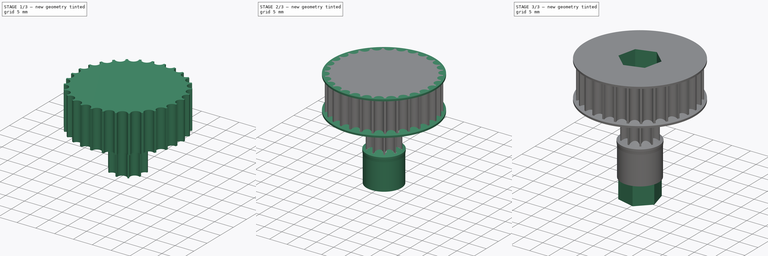
[diagram: build sequence overview — one tinted view per stage of 3, left to right]
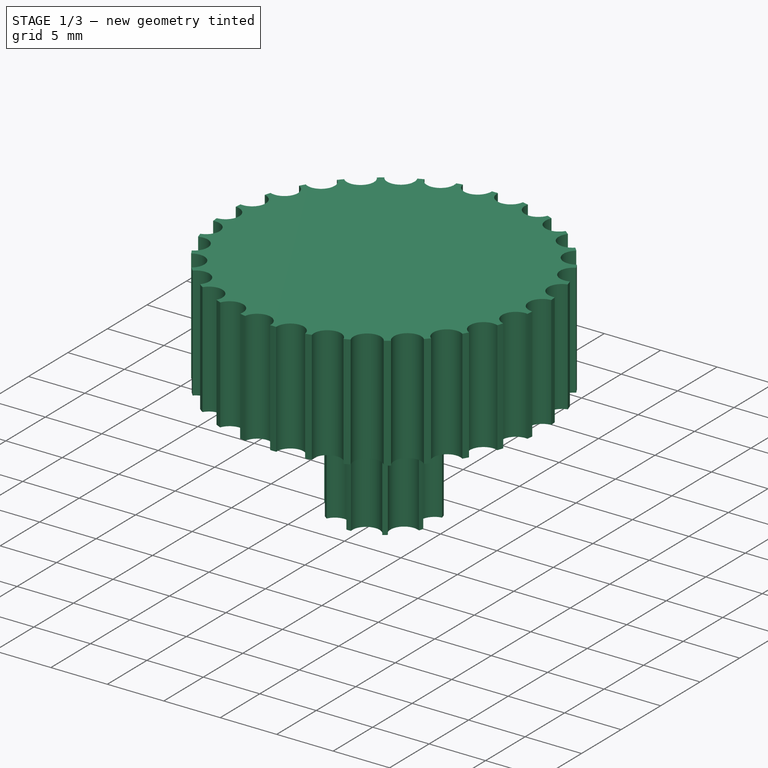
[diagram: stage 1 of 3 — iso view after this stage's code; geometry added in this stage tinted green]
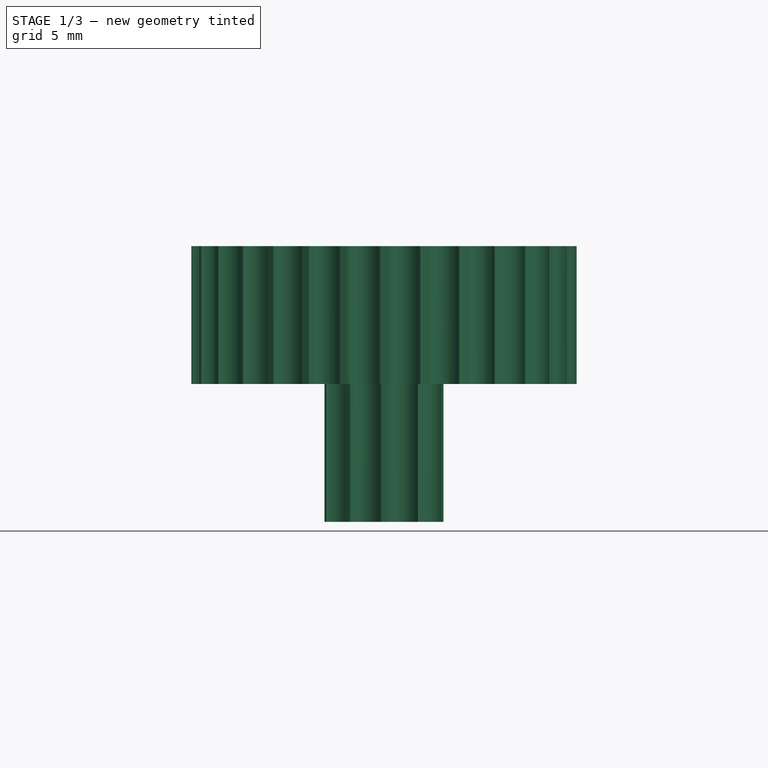
[diagram: stage 1 of 3 — front view after this stage's code; geometry added in this stage tinted green]
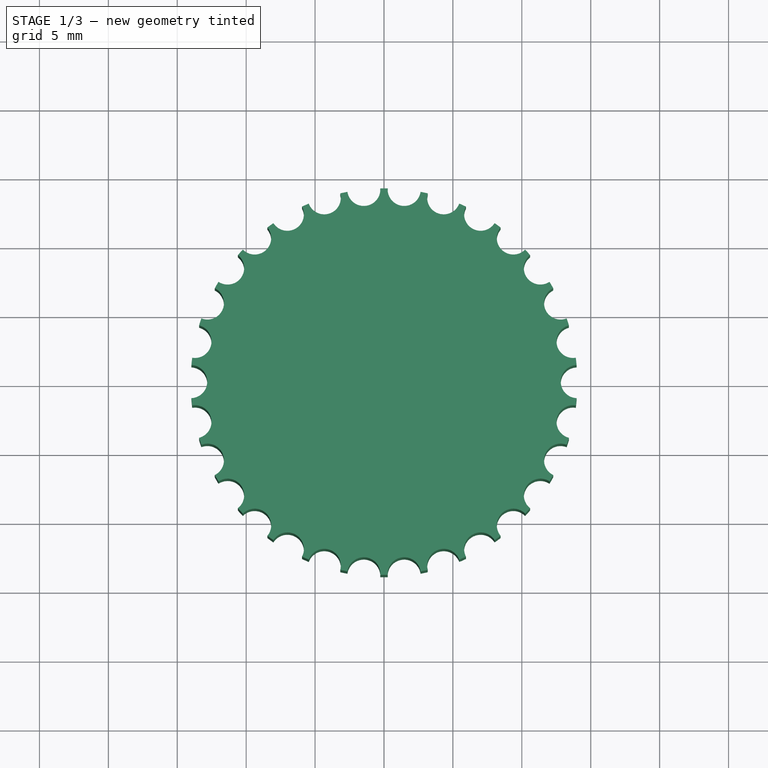
[diagram: stage 1 of 3 — top view after this stage's code; geometry added in this stage tinted green]
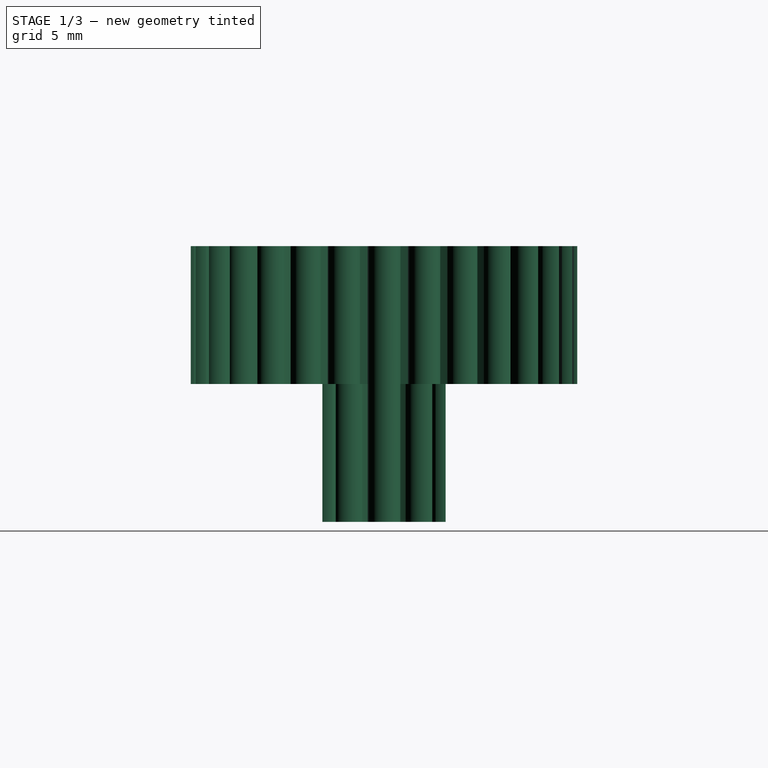
[diagram: stage 1 of 3 — right view after this stage's code; geometry added in this stage tinted green]
FCSTD DOCUMENT  (FreeCAD 0.20R29177 (Git))
Label: biggerWheel
License: All rights reserved
LicenseURL: http://en.wikipedia.org/wiki/All_rights_reserved
objects: Sketcher::SketchObject×5, PartDesign::Pad×3, Spreadsheet::Sheet×1, PartDesign::Revolution×1, PartDesign::Pocket×1, PartDesign::Body×1
note: 16 computed .brp shape members not serialized (recipe doc carries the construction recipe); baked Part::Feature solids carry a one-line shape summary decoded from their .brp

FEATURE [Sketcher::SketchObject] Sketch  label="Sketch30"
  FullyConstrained = false
  MapMode = 5
  Support = -> [XY_Plane]
  sketch-geometry (60):
    g0: ArcOfCircle CenterX=0 CenterY=0 CenterZ=0 NormalX=0 NormalY=0 NormalZ=1 AngleXU=0 Radius=14.0239 StartAngle=6.15934 EndAngle=6.19759
    g1: ArcOfCircle CenterX=14.0239 CenterY=0 CenterZ=0 NormalX=0 NormalY=0 NormalZ=1 AngleXU=0 Radius=1.2 StartAngle=1.61359 EndAngle=4.66959
    g2: ArcOfCircle CenterX=13.7175 CenterY=2.91574 CenterZ=0 NormalX=0 NormalY=0 NormalZ=1 AngleXU=0 Radius=1.2 StartAngle=1.82303 EndAngle=4.87903
    g3: ArcOfCircle CenterX=12.8115 CenterY=5.70405 CenterZ=0 NormalX=0 NormalY=0 NormalZ=1 AngleXU=0 Radius=1.2 StartAngle=2.03247 EndAngle=5.08847
    g4: ArcOfCircle CenterX=11.3456 CenterY=8.24307 CenterZ=0 NormalX=0 NormalY=0 NormalZ=1 AngleXU=0 Radius=1.2 StartAngle=2.24191 EndAngle=5.29791
    g5: ArcOfCircle CenterX=9.38385 CenterY=10.4218 CenterZ=0 NormalX=0 NormalY=0 NormalZ=1 AngleXU=0 Radius=1.2 StartAngle=2.45135 EndAngle=5.50735
    g6: ArcOfCircle CenterX=7.01197 CenterY=12.1451 CenterZ=0 NormalX=0 NormalY=0 NormalZ=1 AngleXU=0 Radius=1.2 StartAngle=2.66079 EndAngle=5.71679
    g7: ArcOfCircle CenterX=4.33364 CenterY=13.3376 CenterZ=0 NormalX=0 NormalY=0 NormalZ=1 AngleXU=0 Radius=1.2 StartAngle=2.87023 EndAngle=5.92623
    g8: ArcOfCircle CenterX=1.4659 CenterY=13.9471 CenterZ=0 NormalX=0 NormalY=0 NormalZ=1 AngleXU=0 Radius=1.2 StartAngle=3.07967 EndAngle=6.13567
    g9: ArcOfCircle CenterX=-1.4659 CenterY=13.9471 CenterZ=0 NormalX=0 NormalY=0 NormalZ=1 AngleXU=0 Radius=1.2 StartAngle=3.28911 EndAngle=6.34511
    g10: ArcOfCircle CenterX=-4.33364 CenterY=13.3376 CenterZ=0 NormalX=0 NormalY=0 NormalZ=1 AngleXU=0 Radius=1.2 StartAngle=3.49855 EndAngle=6.55455
    g11: ArcOfCircle CenterX=-7.01197 CenterY=12.1451 CenterZ=0 NormalX=0 NormalY=0 NormalZ=1 AngleXU=0 Radius=1.2 StartAngle=3.70799 EndAngle=6.76399
    g12: ArcOfCircle CenterX=-9.38385 CenterY=10.4218 CenterZ=0 NormalX=0 NormalY=0 NormalZ=1 AngleXU=0 Radius=1.2 StartAngle=3.91743 EndAngle=6.97343
    g13: ArcOfCircle CenterX=-11.3456 CenterY=8.24307 CenterZ=0 NormalX=0 NormalY=0 NormalZ=1 AngleXU=0 Radius=1.2 StartAngle=4.12687 EndAngle=7.18287
    g14: ArcOfCircle CenterX=-12.8115 CenterY=5.70405 CenterZ=0 NormalX=0 NormalY=0 NormalZ=1 AngleXU=0 Radius=1.2 StartAngle=4.33631 EndAngle=7.39231
    g15: ArcOfCircle CenterX=-13.7175 CenterY=2.91574 CenterZ=0 NormalX=0 NormalY=0 NormalZ=1 AngleXU=0 Radius=1.2 StartAngle=4.54575 EndAngle=7.60175
    g16: ArcOfCircle CenterX=-14.0239 CenterY=1.7e-15 CenterZ=0 NormalX=0 NormalY=0 NormalZ=1 AngleXU=0 Radius=1.2 StartAngle=4.75519 EndAngle=7.81118
    g17: ArcOfCircle CenterX=-13.7175 CenterY=-2.91574 CenterZ=0 NormalX=0 NormalY=0 NormalZ=1 AngleXU=0 Radius=1.2 StartAngle=4.96463 EndAngle=8.02062
    g18: ArcOfCircle CenterX=-12.8115 CenterY=-5.70405 CenterZ=0 NormalX=0 NormalY=0 NormalZ=1 AngleXU=0 Radius=1.2 StartAngle=5.17407 EndAngle=8.23006
    g19: ArcOfCircle CenterX=-11.3456 CenterY=-8.24307 CenterZ=0 NormalX=0 NormalY=0 NormalZ=1 AngleXU=0 Radius=1.2 StartAngle=5.3835 EndAngle=8.4395
    g20: ArcOfCircle CenterX=-9.38385 CenterY=-10.4218 CenterZ=0 NormalX=0 NormalY=0 NormalZ=1 AngleXU=0 Radius=1.2 StartAngle=5.59294 EndAngle=8.64894
    g21: ArcOfCircle CenterX=-7.01197 CenterY=-12.1451 CenterZ=0 NormalX=0 NormalY=0 NormalZ=1 AngleXU=0 Radius=1.2 StartAngle=5.80238 EndAngle=8.85838
    g22: ArcOfCircle CenterX=-4.33364 CenterY=-13.3376 CenterZ=0 NormalX=0 NormalY=0 NormalZ=1 AngleXU=0 Radius=1.2 StartAngle=6.01182 EndAngle=9.06782
    g23: ArcOfCircle CenterX=-1.4659 CenterY=-13.9471 CenterZ=0 NormalX=0 NormalY=0 NormalZ=1 AngleXU=0 Radius=1.2 StartAngle=6.22126 EndAngle=9.27726
    g24: ArcOfCircle CenterX=1.4659 CenterY=-13.9471 CenterZ=0 NormalX=0 NormalY=0 NormalZ=1 AngleXU=0 Radius=1.2 StartAngle=0.147517 EndAngle=3.20352
    g25: ArcOfCircle CenterX=4.33364 CenterY=-13.3376 CenterZ=0 NormalX=0 NormalY=0 NormalZ=1 AngleXU=0 Radius=1.2 StartAngle=0.356956 EndAngle=3.41295
    g26: ArcOfCircle CenterX=7.01197 CenterY=-12.1451 CenterZ=0 NormalX=0 NormalY=0 NormalZ=1 AngleXU=0 Radius=1.2 StartAngle=0.566396 EndAngle=3.62239
    g27: ArcOfCircle CenterX=9.38385 CenterY=-10.4218 CenterZ=0 NormalX=0 NormalY=0 NormalZ=1 AngleXU=0 Radius=1.2 StartAngle=0.775835 EndAngle=3.83183
    g28: ArcOfCircle CenterX=11.3456 CenterY=-8.24307 CenterZ=0 NormalX=0 NormalY=0 NormalZ=1 AngleXU=0 Radius=1.2 StartAngle=0.985275 EndAngle=4.04127
    g29: ArcOfCircle CenterX=12.8115 CenterY=-5.70405 CenterZ=0 NormalX=0 NormalY=0 NormalZ=1 AngleXU=0 Radius=1.2 StartAngle=1.19471 EndAngle=4.25071
    g30: ArcOfCircle CenterX=13.7175 CenterY=-2.91574 CenterZ=0 NormalX=0 NormalY=0 NormalZ=1 AngleXU=0 Radius=1.2 StartAngle=1.40415 EndAngle=4.46015
    g31: ArcOfCircle CenterX=0 CenterY=0 CenterZ=0 NormalX=0 NormalY=0 NormalZ=1 AngleXU=0 Radius=14.0239 StartAngle=5.9499 EndAngle=5.98815
    g32: ArcOfCircle CenterX=0 CenterY=0 CenterZ=0 NormalX=0 NormalY=0 NormalZ=1 AngleXU=0 Radius=14.0239 StartAngle=5.74046 EndAngle=5.77871
    g33: ArcOfCircle CenterX=0 CenterY=0 CenterZ=0 NormalX=0 NormalY=0 NormalZ=1 AngleXU=0 Radius=14.0239 StartAngle=5.53102 EndAngle=5.56927
    g34: ArcOfCircle CenterX=0 CenterY=0 CenterZ=0 NormalX=0 NormalY=0 NormalZ=1 AngleXU=0 Radius=14.0239 StartAngle=5.32158 EndAngle=5.35983
    g35: ArcOfCircle CenterX=0 CenterY=0 CenterZ=0 NormalX=0 NormalY=0 NormalZ=1 AngleXU=0 Radius=14.0239 StartAngle=5.11214 EndAngle=5.15039
    g36: ArcOfCircle CenterX=0 CenterY=0 CenterZ=0 NormalX=0 NormalY=0 NormalZ=1 AngleXU=0 Radius=14.0239 StartAngle=4.9027 EndAngle=4.94095
    g37: ArcOfCircle CenterX=0 CenterY=0 CenterZ=0 NormalX=0 NormalY=0 NormalZ=1 AngleXU=0 Radius=14.0239 StartAngle=4.69326 EndAngle=4.73151
    g38: ArcOfCircle CenterX=0 CenterY=0 CenterZ=0 NormalX=0 NormalY=0 NormalZ=1 AngleXU=0 Radius=14.0239 StartAngle=4.48382 EndAngle=4.52208
    g39: ArcOfCircle CenterX=0 CenterY=0 CenterZ=0 NormalX=0 NormalY=0 NormalZ=1 AngleXU=0 Radius=14.0239 StartAngle=4.27438 EndAngle=4.31264
    g40: ArcOfCircle CenterX=0 CenterY=0 CenterZ=0 NormalX=0 NormalY=0 NormalZ=1 AngleXU=0 Radius=14.0239 StartAngle=4.06494 EndAngle=4.1032
    g41: ArcOfCircle CenterX=0 CenterY=0 CenterZ=0 NormalX=0 NormalY=0 NormalZ=1 AngleXU=0 Radius=14.0239 StartAngle=3.85551 EndAngle=3.89376
    g42: ArcOfCircle CenterX=0 CenterY=0 CenterZ=0 NormalX=0 NormalY=0 NormalZ=1 AngleXU=0 Radius=14.0239 StartAngle=3.64607 EndAngle=3.68432
    g43: ArcOfCircle CenterX=0 CenterY=0 CenterZ=0 NormalX=0 NormalY=0 NormalZ=1 AngleXU=0 Radius=14.0239 StartAngle=3.43663 EndAngle=3.47488
    g44: ArcOfCircle CenterX=0 CenterY=0 CenterZ=0 NormalX=0 NormalY=0 NormalZ=1 AngleXU=0 Radius=14.0239 StartAngle=3.22719 EndAngle=3.26544
    g45: ArcOfCircle CenterX=0 CenterY=0 CenterZ=0 NormalX=0 NormalY=0 NormalZ=1 AngleXU=0 Radius=14.0239 StartAngle=3.01775 EndAngle=3.056
    g46: ArcOfCircle CenterX=0 CenterY=0 CenterZ=0 NormalX=0 NormalY=0 NormalZ=1 AngleXU=0 Radius=14.0239 StartAngle=2.80831 EndAngle=2.84656
    g47: ArcOfCircle CenterX=0 CenterY=0 CenterZ=0 NormalX=0 NormalY=0 NormalZ=1 AngleXU=0 Radius=14.0239 StartAngle=2.59887 EndAngle=2.63712
    g48: ArcOfCircle CenterX=0 CenterY=0 CenterZ=0 NormalX=0 NormalY=0 NormalZ=1 AngleXU=0 Radius=14.0239 StartAngle=2.38943 EndAngle=2.42768
    g49: ArcOfCircle CenterX=0 CenterY=0 CenterZ=0 NormalX=0 NormalY=0 NormalZ=1 AngleXU=0 Radius=14.0239 StartAngle=2.17999 EndAngle=2.21824
    g50: ArcOfCircle CenterX=0 CenterY=0 CenterZ=0 NormalX=0 NormalY=0 NormalZ=1 AngleXU=0 Radius=14.0239 StartAngle=1.97055 EndAngle=2.0088
    g51: ArcOfCircle CenterX=0 CenterY=0 CenterZ=0 NormalX=0 NormalY=0 NormalZ=1 AngleXU=0 Radius=14.0239 StartAngle=1.76111 EndAngle=1.79936
    g52: ArcOfCircle CenterX=0 CenterY=0 CenterZ=0 NormalX=0 NormalY=0 NormalZ=1 AngleXU=0 Radius=14.0239 StartAngle=1.55167 EndAngle=1.58992
    g53: ArcOfCircle CenterX=0 CenterY=0 CenterZ=0 NormalX=0 NormalY=0 NormalZ=1 AngleXU=0 Radius=14.0239 StartAngle=1.34223 EndAngle=1.38048
    g54: ArcOfCircle CenterX=0 CenterY=0 CenterZ=0 NormalX=0 NormalY=0 NormalZ=1 AngleXU=0 Radius=14.0239 StartAngle=1.13279 EndAngle=1.17104
    g55: ArcOfCircle CenterX=0 CenterY=0 CenterZ=0 NormalX=0 NormalY=0 NormalZ=1 AngleXU=0 Radius=14.0239 StartAngle=0.923352 EndAngle=0.961603
    g56: ArcOfCircle CenterX=0 CenterY=0 CenterZ=0 NormalX=0 NormalY=0 NormalZ=1 AngleXU=0 Radius=14.0239 StartAngle=0.713913 EndAngle=0.752164
    g57: ArcOfCircle CenterX=0 CenterY=0 CenterZ=0 NormalX=0 NormalY=0 NormalZ=1 AngleXU=0 Radius=14.0239 StartAngle=0.504473 EndAngle=0.542724
    g58: ArcOfCircle CenterX=0 CenterY=0 CenterZ=0 NormalX=0 NormalY=0 NormalZ=1 AngleXU=0 Radius=14.0239 StartAngle=0.295034 EndAngle=0.333285
    g59: ArcOfCircle CenterX=0 CenterY=0 CenterZ=0 NormalX=0 NormalY=0 NormalZ=1 AngleXU=0 Radius=14.0239 StartAngle=0.0855941 EndAngle=0.123845
  constraints (119):
    c: Coincident(g0,g-1)
    c: Coincident(g31,g30)
    c: Coincident(g0,g30)
    c: Equal(g0,g31)
    c: Coincident(g32,g29)
    c: Coincident(g31,g29)
    c: Coincident(g0,g31)
    c: Equal(g0,g32)
    c: Coincident(g33,g28)
    c: Coincident(g32,g28)
    c: Coincident(g0,g32)
    c: Equal(g0,g33)
    c: Coincident(g34,g27)
    c: Coincident(g33,g27)
    c: Coincident(g0,g33)
    c: Equal(g0,g34)
    c: Coincident(g35,g26)
    c: Coincident(g34,g26)
    c: Coincident(g0,g34)
    c: Equal(g0,g35)
    c: Coincident(g36,g25)
    c: Coincident(g35,g25)
    c: Coincident(g0,g35)
    c: Equal(g0,g36)
    c: Coincident(g37,g24)
    c: Coincident(g36,g24)
    c: Coincident(g0,g36)
    c: Equal(g0,g37)
    c: Coincident(g38,g23)
    c: Coincident(g37,g23)
    c: Coincident(g0,g37)
    c: Equal(g0,g38)
    c: Coincident(g39,g22)
    c: Coincident(g38,g22)
    c: Coincident(g0,g38)
    c: Equal(g0,g39)
    c: Coincident(g40,g21)
    c: Coincident(g39,g21)
    c: Coincident(g0,g39)
    c: Equal(g0,g40)
    c: Coincident(g41,g20)
    c: Coincident(g40,g20)
    c: Coincident(g0,g40)
    c: Equal(g0,g41)
    c: Coincident(g42,g19)
    c: Coincident(g41,g19)
    c: Coincident(g0,g41)
    c: Equal(g0,g42)
    c: Coincident(g43,g18)
    c: Coincident(g42,g18)
    c: Coincident(g0,g42)
    c: Equal(g0,g43)
    c: Coincident(g44,g17)
    c: Coincident(g43,g17)
    c: Coincident(g0,g43)
    c: Equal(g0,g44)
    c: Coincident(g45,g16)
    c: Coincident(g44,g16)
    c: Coincident(g0,g44)
    c: Equal(g0,g45)
    c: Coincident(g46,g15)
    c: Coincident(g45,g15)
    c: Coincident(g0,g45)
    c: Equal(g0,g46)
    c: Coincident(g47,g14)
    c: Coincident(g46,g14)
    c: Coincident(g0,g46)
    c: Equal(g0,g47)
    c: Coincident(g48,g13)
    c: Coincident(g47,g13)
    c: Coincident(g0,g47)
    c: Equal(g0,g48)
    c: Coincident(g49,g12)
    c: Coincident(g48,g12)
    c: Coincident(g0,g48)
    c: Equal(g0,g49)
    c: Coincident(g50,g11)
    c: Coincident(g49,g11)
    c: Coincident(g0,g49)
    c: Equal(g0,g50)
    c: Coincident(g51,g10)
    c: Coincident(g50,g10)
    c: Coincident(g0,g50)
    c: Equal(g0,g51)
    c: Coincident(g52,g9)
    c: Coincident(g51,g9)
    c: Coincident(g0,g51)
    c: Equal(g0,g52)
    c: Coincident(g53,g8)
    c: Coincident(g52,g8)
    c: Coincident(g0,g52)
    c: Equal(g0,g53)
    c: Coincident(g54,g7)
    c: Coincident(g53,g7)
    c: Coincident(g0,g53)
    c: Equal(g0,g54)
    c: Coincident(g55,g6)
    c: Coincident(g54,g6)
    c: Coincident(g0,g54)
    c: Equal(g0,g55)
    c: Coincident(g56,g5)
    c: Coincident(g55,g5)
    c: Coincident(g0,g55)
    c: Equal(g0,g56)
    c: Coincident(g57,g4)
    c: Coincident(g56,g4)
    c: Coincident(g0,g56)
    c: Equal(g0,g57)
    c: Coincident(g58,g3)
    c: Coincident(g57,g3)
    c: Coincident(g0,g57)
    c: Equal(g0,g58)
    c: Coincident(g59,g2)
    c: Coincident(g58,g2)
    c: Coincident(g0,g58)
    c: Equal(g0,g59)
    c: Coincident(g0,g1)
    c: Coincident(g59,g1)
    c: Coincident(g0,g59)
FEATURE [PartDesign::Pad] Pad  label="Pad30"
  Direction = (0,0,1)
  Length = 10
  Length2 = 10
  Profile = -> Sketch
  ReferenceAxis = -> Sketch [N_Axis]
  Type = 0
  expr: Length = Spreadsheet.wheelWidth
FEATURE [Sketcher::SketchObject] Sketch001
  FullyConstrained = false
  MapMode = 5
  Placement = pos=(0,0,0) rot=(1,0,0;3.14159rad)
  Support = -> [Pad]
  sketch-geometry (20):
    g0: ArcOfCircle CenterX=0 CenterY=0 CenterZ=0 NormalX=0 NormalY=0 NormalZ=1 AngleXU=0 Radius=4.47465 StartAngle=5.92385 EndAngle=6.0142
    g1: ArcOfCircle CenterX=4.47465 CenterY=0 CenterZ=0 NormalX=0 NormalY=0 NormalZ=1 AngleXU=0 Radius=1.2 StartAngle=1.70529 EndAngle=4.5779
    g2: ArcOfCircle CenterX=3.62007 CenterY=2.63013 CenterZ=0 NormalX=0 NormalY=0 NormalZ=1 AngleXU=0 Radius=1.2 StartAngle=2.33361 EndAngle=5.20621
    g3: ArcOfCircle CenterX=1.38274 CenterY=4.25564 CenterZ=0 NormalX=0 NormalY=0 NormalZ=1 AngleXU=0 Radius=1.2 StartAngle=2.96193 EndAngle=5.83453
    g4: ArcOfCircle CenterX=-1.38274 CenterY=4.25564 CenterZ=0 NormalX=0 NormalY=0 NormalZ=1 AngleXU=0 Radius=1.2 StartAngle=3.59025 EndAngle=6.46285
    g5: ArcOfCircle CenterX=-3.62007 CenterY=2.63013 CenterZ=0 NormalX=0 NormalY=0 NormalZ=1 AngleXU=0 Radius=1.2 StartAngle=4.21856 EndAngle=7.09117
    g6: ArcOfCircle CenterX=-4.47465 CenterY=5e-16 CenterZ=0 NormalX=0 NormalY=0 NormalZ=1 AngleXU=0 Radius=1.2 StartAngle=4.84688 EndAngle=7.71949
    g7: ArcOfCircle CenterX=-3.62007 CenterY=-2.63013 CenterZ=0 NormalX=0 NormalY=0 NormalZ=1 AngleXU=0 Radius=1.2 StartAngle=5.4752 EndAngle=8.34781
    g8: ArcOfCircle CenterX=-1.38274 CenterY=-4.25564 CenterZ=0 NormalX=0 NormalY=0 NormalZ=1 AngleXU=0 Radius=1.2 StartAngle=6.10352 EndAngle=8.97612
    g9: ArcOfCircle CenterX=1.38274 CenterY=-4.25564 CenterZ=0 NormalX=0 NormalY=0 NormalZ=1 AngleXU=0 Radius=1.2 StartAngle=0.448653 EndAngle=3.32126
    g10: ArcOfCircle CenterX=3.62007 CenterY=-2.63013 CenterZ=0 NormalX=0 NormalY=0 NormalZ=1 AngleXU=0 Radius=1.2 StartAngle=1.07697 EndAngle=3.94958
    g11: ArcOfCircle CenterX=0 CenterY=0 CenterZ=0 NormalX=0 NormalY=0 NormalZ=1 AngleXU=0 Radius=4.47465 StartAngle=5.29554 EndAngle=5.38588
    g12: ArcOfCircle CenterX=0 CenterY=0 CenterZ=0 NormalX=0 NormalY=0 NormalZ=1 AngleXU=0 Radius=4.47465 StartAngle=4.66722 EndAngle=4.75756
    g13: ArcOfCircle CenterX=0 CenterY=0 CenterZ=0 NormalX=0 NormalY=0 NormalZ=1 AngleXU=0 Radius=4.47465 StartAngle=4.0389 EndAngle=4.12924
    g14: ArcOfCircle CenterX=0 CenterY=0 CenterZ=0 NormalX=0 NormalY=0 NormalZ=1 AngleXU=0 Radius=4.47465 StartAngle=3.41058 EndAngle=3.50092
    g15: ArcOfCircle CenterX=0 CenterY=0 CenterZ=0 NormalX=0 NormalY=0 NormalZ=1 AngleXU=0 Radius=4.47465 StartAngle=2.78226 EndAngle=2.8726
    g16: ArcOfCircle CenterX=0 CenterY=0 CenterZ=0 NormalX=0 NormalY=0 NormalZ=1 AngleXU=0 Radius=4.47465 StartAngle=2.15394 EndAngle=2.24429
    g17: ArcOfCircle CenterX=0 CenterY=0 CenterZ=0 NormalX=0 NormalY=0 NormalZ=1 AngleXU=0 Radius=4.47465 StartAngle=1.52562 EndAngle=1.61597
    g18: ArcOfCircle CenterX=0 CenterY=0 CenterZ=0 NormalX=0 NormalY=0 NormalZ=1 AngleXU=0 Radius=4.47465 StartAngle=0.897306 EndAngle=0.987649
    g19: ArcOfCircle CenterX=0 CenterY=0 CenterZ=0 NormalX=0 NormalY=0 NormalZ=1 AngleXU=0 Radius=4.47465 StartAngle=0.268988 EndAngle=0.359331
  constraints (39):
    c: Coincident(g0,g-1)
    c: Coincident(g11,g10)
    c: Coincident(g0,g10)
    c: Equal(g0,g11)
    c: Coincident(g12,g9)
    c: Coincident(g11,g9)
    c: Coincident(g0,g11)
    c: Equal(g0,g12)
    c: Coincident(g13,g8)
    c: Coincident(g12,g8)
    c: Coincident(g0,g12)
    c: Equal(g0,g13)
    c: Coincident(g14,g7)
    c: Coincident(g13,g7)
    c: Coincident(g0,g13)
    c: Equal(g0,g14)
    c: Coincident(g15,g6)
    c: Coincident(g14,g6)
    c: Coincident(g0,g14)
    c: Equal(g0,g15)
    c: Coincident(g16,g5)
    c: Coincident(g15,g5)
    c: Coincident(g0,g15)
    c: Equal(g0,g16)
    c: Coincident(g17,g4)
    c: Coincident(g16,g4)
    c: Coincident(g0,g16)
    c: Equal(g0,g17)
    c: Coincident(g18,g3)
    c: Coincident(g17,g3)
    c: Coincident(g0,g17)
    c: Equal(g0,g18)
    c: Coincident(g19,g2)
    c: Coincident(g18,g2)
    c: Coincident(g0,g18)
    c: Equal(g0,g19)
    c: Coincident(g0,g1)
    c: Coincident(g19,g1)
    c: Coincident(g0,g19)
FEATURE [PartDesign::Pad] Pad001
  BaseFeature = -> Pad
  Direction = (0,0,-1)
  Length = 10
  Length2 = 10
  Profile = -> Sketch001
  ReferenceAxis = -> Sketch001 [N_Axis]
  Type = 0
  expr: Length = Spreadsheet.wheelWidth
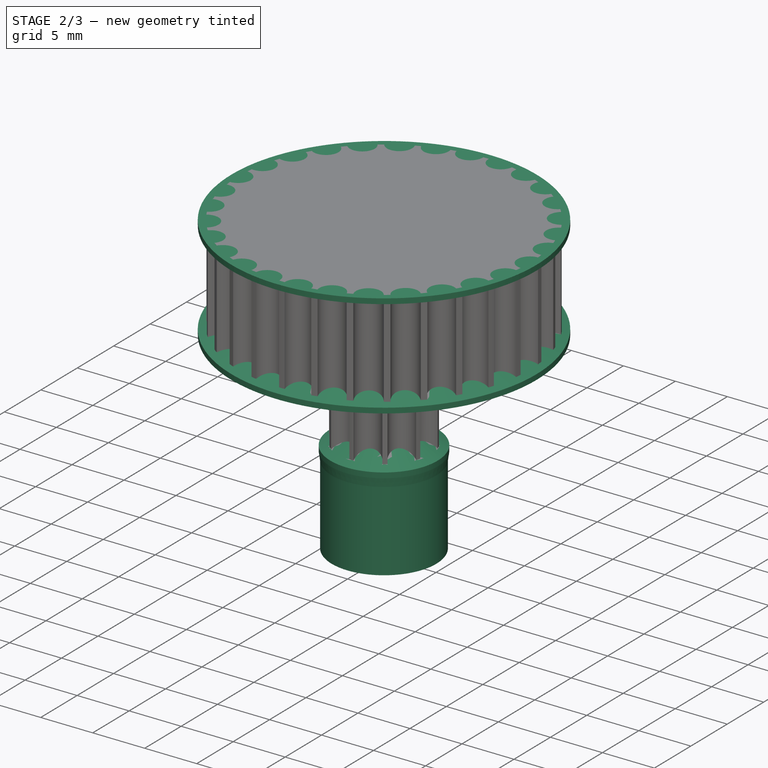
[diagram: stage 2 of 3 — iso view after this stage's code; geometry added in this stage tinted green]
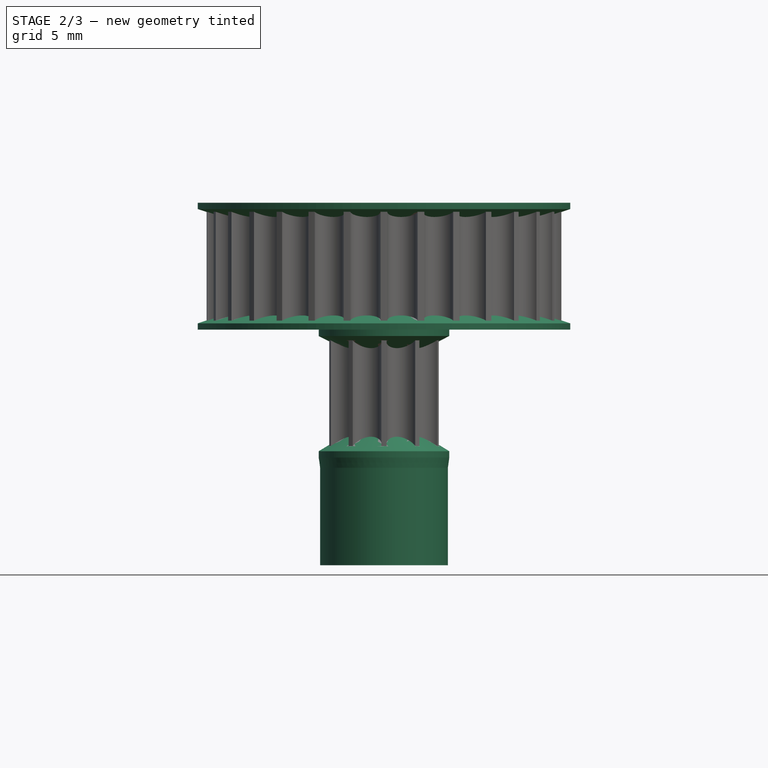
[diagram: stage 2 of 3 — front view after this stage's code; geometry added in this stage tinted green]
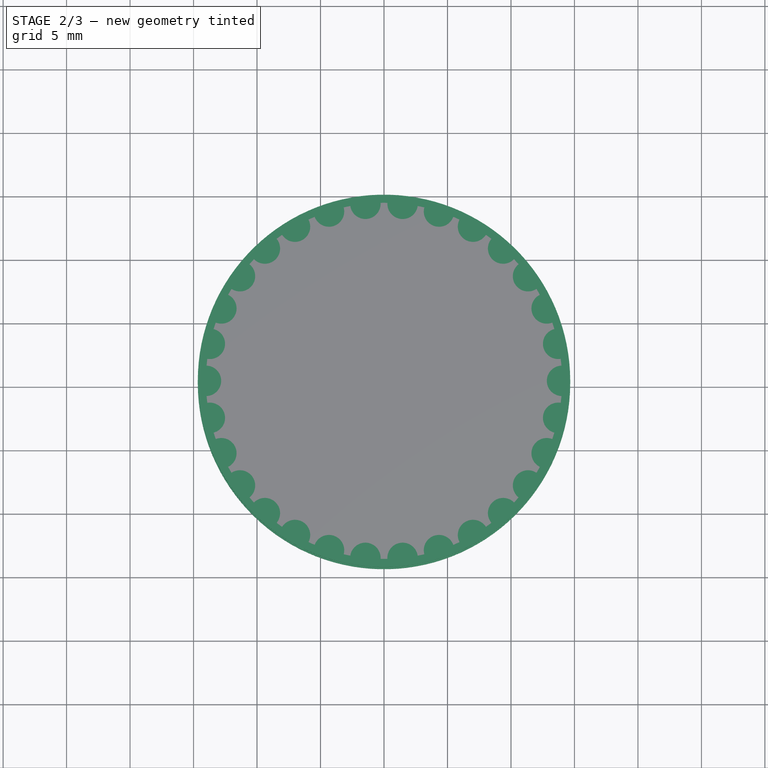
[diagram: stage 2 of 3 — top view after this stage's code; geometry added in this stage tinted green]
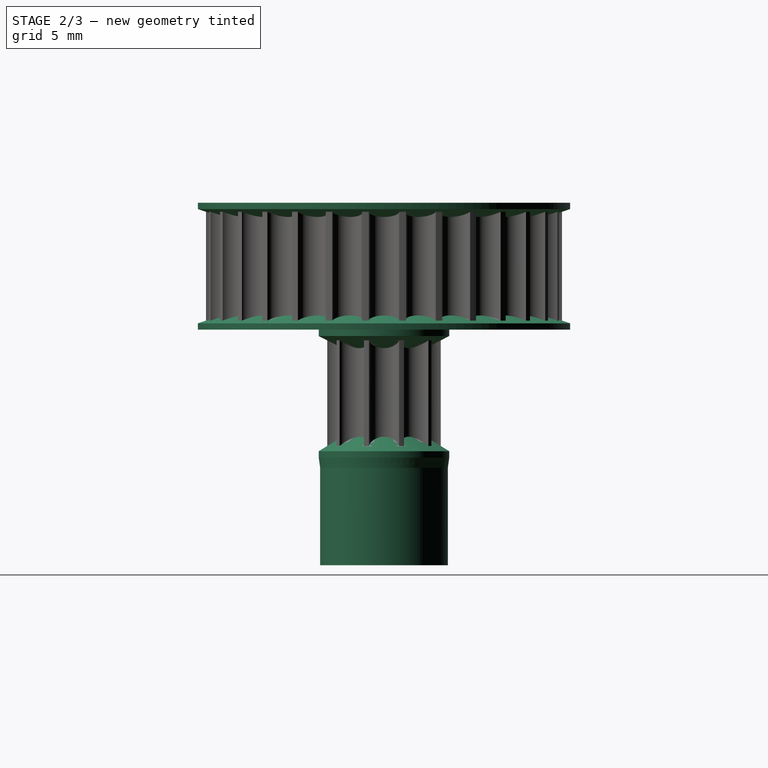
[diagram: stage 2 of 3 — right view after this stage's code; geometry added in this stage tinted green]
FEATURE [Sketcher::SketchObject] Sketch002
  FullyConstrained = false
  MapMode = 5
  Placement = pos=(0,0,0) rot=(1,0,0;1.5708rad)
  Support = -> [XZ_Plane]
  expr: Constraints[10] = Spreadsheet.wheelWidth
  expr: Constraints[33] = Spreadsheet.BearingShaftR
  sketch-geometry (19):
    g0: LineSegment StartX=11.7 StartY=10 StartZ=0 EndX=14.6659 EndY=10 EndZ=0
    g1: LineSegment StartX=14.6659 StartY=10 StartZ=0 EndX=14.6659 EndY=9.5 EndZ=0
    g2: LineSegment StartX=14.6659 StartY=9.5 StartZ=0 EndX=11.7 EndY=8.5 EndZ=0
    g3: LineSegment StartX=11.7 StartY=8.5 StartZ=0 EndX=11.7 EndY=10 EndZ=0
    g4: LineSegment StartX=11.7 StartY=0 StartZ=0 EndX=11.7 EndY=1.5 EndZ=0
    g5: LineSegment StartX=11.7 StartY=1.5 StartZ=0 EndX=14.6659 EndY=0.5 EndZ=0
    g6: LineSegment StartX=14.6659 StartY=0.5 StartZ=0 EndX=14.6659 EndY=0 EndZ=0
    g7: LineSegment StartX=14.6659 StartY=0 StartZ=0 EndX=11.7 EndY=0 EndZ=0
    g8: LineSegment StartX=0 StartY=-8.22868 StartZ=0 EndX=0 EndY=-18.5559 EndZ=0
    g9: LineSegment StartX=0 StartY=-18.5559 StartZ=0 EndX=5.03 EndY=-18.5559 EndZ=0
    g10: LineSegment StartX=5.03 StartY=-18.5559 StartZ=0 EndX=5.03 EndY=-10.8771 EndZ=0
    g11: LineSegment StartX=5.03 StartY=-10.8771 StartZ=0 EndX=5.14349 EndY=-10.07 EndZ=0
    g12: LineSegment StartX=5.14349 StartY=-10.07 StartZ=0 EndX=5.14349 EndY=-9.57004 EndZ=0
    g13: LineSegment StartX=5.14349 StartY=-9.57004 StartZ=0 EndX=2.94529 EndY=-8.22868 EndZ=0
    g14: LineSegment StartX=2.94529 StartY=-8.22868 StartZ=0 EndX=0 EndY=-8.22868 EndZ=0
    g15: LineSegment StartX=2.94529 StartY=0 StartZ=0 EndX=5.14349 EndY=0 EndZ=0
    g16: LineSegment StartX=5.14349 StartY=0 StartZ=0 EndX=5.14349 EndY=-0.5 EndZ=0
    g17: LineSegment StartX=5.14349 StartY=-0.5 StartZ=0 EndX=2.94529 EndY=-1.61959 EndZ=0
    g18: LineSegment StartX=2.94529 StartY=-1.61959 StartZ=0 EndX=2.94529 EndY=0 EndZ=0
  constraints (49):
    c: Horizontal(g0)
    c: Coincident(g1,g0)
    c: Vertical(g1)
    c: Coincident(g2,g1)
    c: Coincident(g3,g0)
    c: Vertical(g3)
    c: DistanceY(g1,g1) = 0.5
    c: DistanceY(g3,g3) = 1.5
    c: Coincident(g2,g3)
    c: DistanceX(g-1,g0) = 11.7
    c: DistanceY(g-1,g0) = 10
    c: Vertical(g4)
    c: Coincident(g5,g4)
    c: Coincident(g6,g5)
    c: Vertical(g6)
    c: Coincident(g7,g4)
    c: Horizontal(g7)
    c: DistanceY(g-1,g4) = 0
    c: Equal(g3,g4)
    c: Equal(g1,g6)
    c: Coincident(g6,g7)
    c: DistanceX(g1,g5) = 0
    c: DistanceX(g4,g0) = 0
    c: PointOnObject(g8,g-2)
    c: Vertical(g8)
    c: Horizontal(g9)
    c: Coincident(g10,g9)
    c: Vertical(g10)
    c: Coincident(g12,g11)
    c: Vertical(g12)
    c: Coincident(g13,g12)
    c: Coincident(g14,g13)
    c: Horizontal(g14)
    c: DistanceX(g9,g9) = 5.03
    c: Coincident(g9,g8)
    c: Coincident(g10,g11)
    c: Horizontal(g15)
    c: Coincident(g16,g15)
    c: Vertical(g16)
    c: Coincident(g17,g16)
    c: Coincident(g18,g17)
    c: Coincident(g18,g15)
    c: Vertical(g18)
    c: DistanceX(g13,g15) = 0
    c: DistanceY(g15,g-1) = 0
    c: Equal(g16,g12)
    c: Coincident(g14,g8)
    c: DistanceY(g16,g16) = 0.5
    c: DistanceX(g12,g16) = 0
FEATURE [Spreadsheet::Sheet] Spreadsheet
  cells = A2=wheelWidth; B2(wheelWidth)=10; A3=wheelGuardWidth; B3(wheelGuardWidth)=0.5; A4=BearingShaftR; B4(BearingShaftR)=5.03; A5=hexSocketFemalR; B5(hexSocketFemalR)=4.965; A6=hexSocketMaleR; B6(hexSocketMaleR)=4.84
FEATURE [PartDesign::Revolution] Revolution
  Angle = 360
  Axis = (0,-2e-16,1)
  Base = (0,0,0)
  BaseFeature = -> Pad001
  Profile = -> Sketch002
  ReferenceAxis = -> Sketch002 [V_Axis]
  Reversed = true
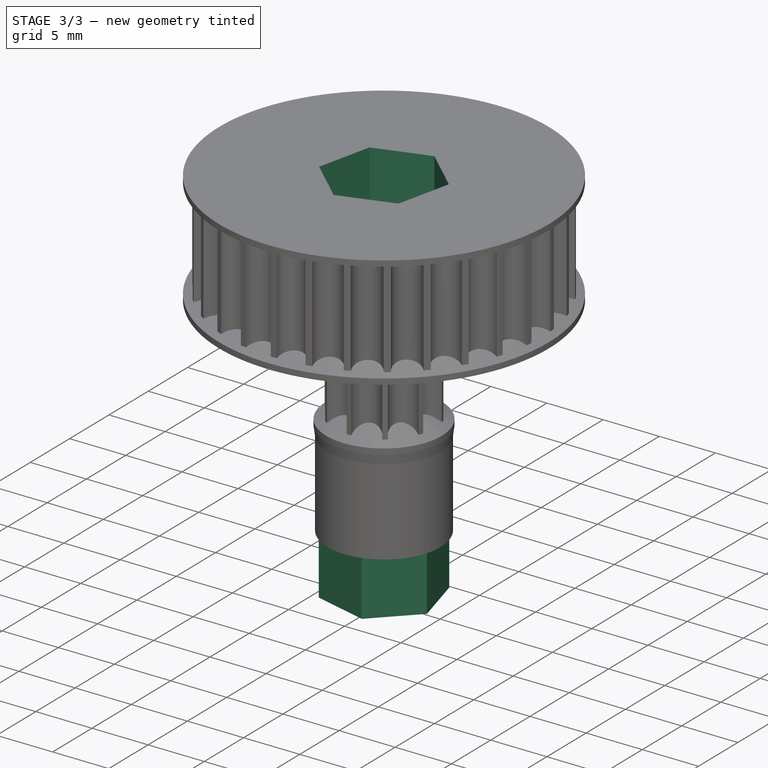
[diagram: stage 3 of 3 — iso view after this stage's code; geometry added in this stage tinted green]
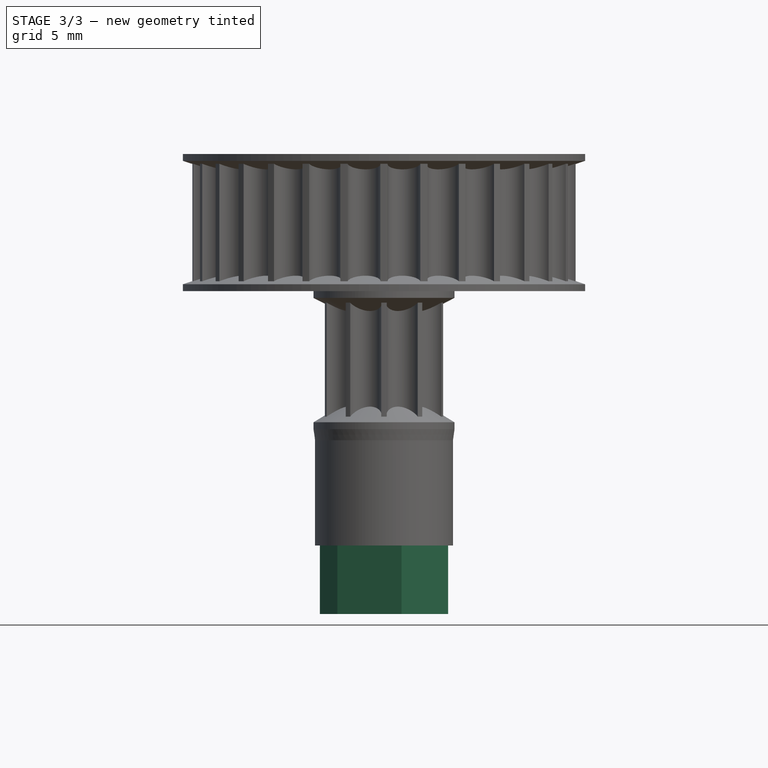
[diagram: stage 3 of 3 — front view after this stage's code; geometry added in this stage tinted green]
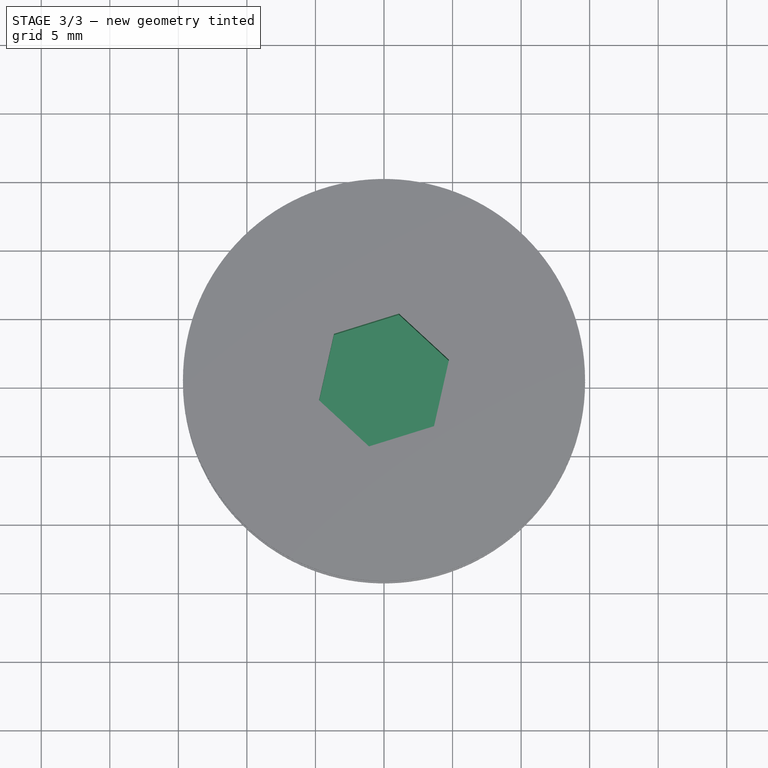
[diagram: stage 3 of 3 — top view after this stage's code; geometry added in this stage tinted green]
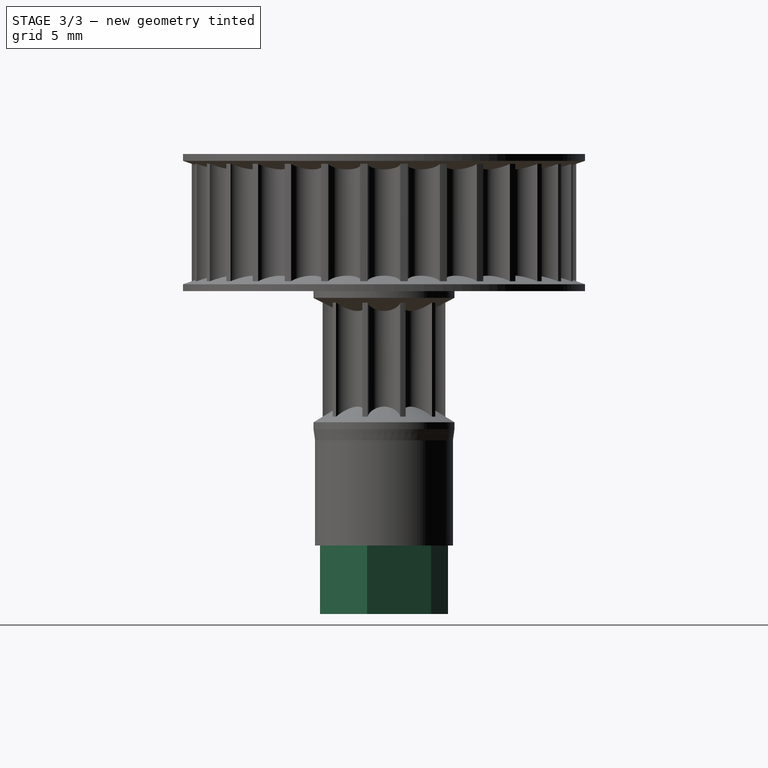
[diagram: stage 3 of 3 — right view after this stage's code; geometry added in this stage tinted green]
FEATURE [Sketcher::SketchObject] Sketch003
  FullyConstrained = false
  MapMode = 5
  Placement = pos=(0,0,10) rot=(0,0,1;0rad)
  Support = -> [Revolution]
  expr: Constraints[18] = Spreadsheet.hexSocketFemalR
  sketch-geometry (7):
    g0: LineSegment StartX=3.64803 StartY=-3.36795 StartZ=0 EndX=4.74075 EndY=1.47531 EndZ=0
    g1: LineSegment StartX=4.74075 StartY=1.47531 StartZ=0 EndX=1.09272 EndY=4.84326 EndZ=0
    g2: LineSegment StartX=1.09272 StartY=4.84326 StartZ=0 EndX=-3.64803 EndY=3.36795 EndZ=0
    g3: LineSegment StartX=-3.64803 StartY=3.36795 StartZ=0 EndX=-4.74075 EndY=-1.47531 EndZ=0
    g4: LineSegment StartX=-4.74075 StartY=-1.47531 StartZ=0 EndX=-1.09272 EndY=-4.84326 EndZ=0
    g5: LineSegment StartX=-1.09272 StartY=-4.84326 StartZ=0 EndX=3.64803 EndY=-3.36795 EndZ=0
    g6: Circle CenterX=0 CenterY=0 CenterZ=0 NormalX=0 NormalY=0 NormalZ=1 AngleXU=0 Radius=4.965
  constraints (15):
    c: Coincident(g0,g1)
    c: Coincident(g1,g2)
    c: Coincident(g2,g3)
    c: Coincident(g3,g4)
    c: Coincident(g4,g5)
    c: Coincident(g5,g0)
    c: Equal(g0, g1-g5) x5
    c: PointOnObject(g0,g6)
    c: PointOnObject(g1,g6)
    c: PointOnObject(g2,g6)
    c: PointOnObject(g3,g6)
    c: PointOnObject(g4,g6)
    c: PointOnObject(g5,g6)
    c: Coincident(g6,g-1)
    c: Radius(g6) = 4.965
FEATURE [PartDesign::Pocket] Pocket
  BaseFeature = -> Revolution
  Direction = (0,0,-1)
  Length = 5
  Length2 = 5
  Profile = -> Sketch003
  ReferenceAxis = -> Sketch003 [N_Axis]
  Type = 0
FEATURE [Sketcher::SketchObject] Sketch004
  FullyConstrained = false
  MapMode = 5
  Placement = pos=(0,4.1e-15,-18.5559) rot=(1,0,0;3.14159rad)
  Support = -> [Pocket]
  expr: Constraints[18] = Spreadsheet.hexSocketMaleR
  sketch-geometry (7):
    g0: LineSegment StartX=3.40414 StartY=-3.44055 StartZ=0 EndX=4.68168 EndY=1.2278 EndZ=0
    g1: LineSegment StartX=4.68168 StartY=1.2278 StartZ=0 EndX=1.27754 EndY=4.66835 EndZ=0
    g2: LineSegment StartX=1.27754 StartY=4.66835 StartZ=0 EndX=-3.40414 EndY=3.44055 EndZ=0
    g3: LineSegment StartX=-3.40414 StartY=3.44055 StartZ=0 EndX=-4.68168 EndY=-1.2278 EndZ=0
    g4: LineSegment StartX=-4.68168 StartY=-1.2278 StartZ=0 EndX=-1.27754 EndY=-4.66835 EndZ=0
    g5: LineSegment StartX=-1.27754 StartY=-4.66835 StartZ=0 EndX=3.40414 EndY=-3.44055 EndZ=0
    g6: Circle CenterX=0 CenterY=0 CenterZ=0 NormalX=0 NormalY=0 NormalZ=1 AngleXU=0 Radius=4.84
  constraints (15):
    c: Coincident(g0,g1)
    c: Coincident(g1,g2)
    c: Coincident(g2,g3)
    c: Coincident(g3,g4)
    c: Coincident(g4,g5)
    c: Coincident(g5,g0)
    c: Equal(g0, g1-g5) x5
    c: PointOnObject(g0,g6)
    c: PointOnObject(g1,g6)
    c: PointOnObject(g2,g6)
    c: PointOnObject(g3,g6)
    c: PointOnObject(g4,g6)
    c: PointOnObject(g5,g6)
    c: Coincident(g6,g-1)
    c: Radius(g6) = 4.84
FEATURE [PartDesign::Pad] Pad002
  BaseFeature = -> Pocket
  Direction = (0,2e-16,-1)
  Length = 5
  Length2 = 10
  Profile = -> Sketch004
  ReferenceAxis = -> Sketch004 [N_Axis]
  Type = 0
FEATURE [PartDesign::Body] Body
  Group = -> [Sketch,Pad,Sketch001,Pad001,Sketch002,Revolution,Sketch003,Pocket,Sketch004,Pad002]
  Origin = -> Origin
  Tip = -> Pad002
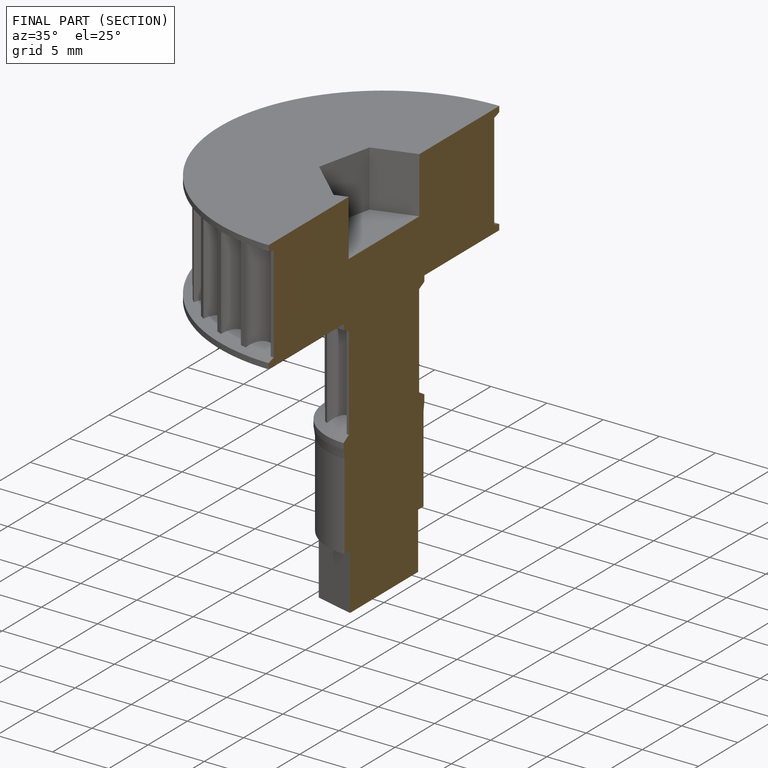
[diagram: finished part — half-section view (interior)]
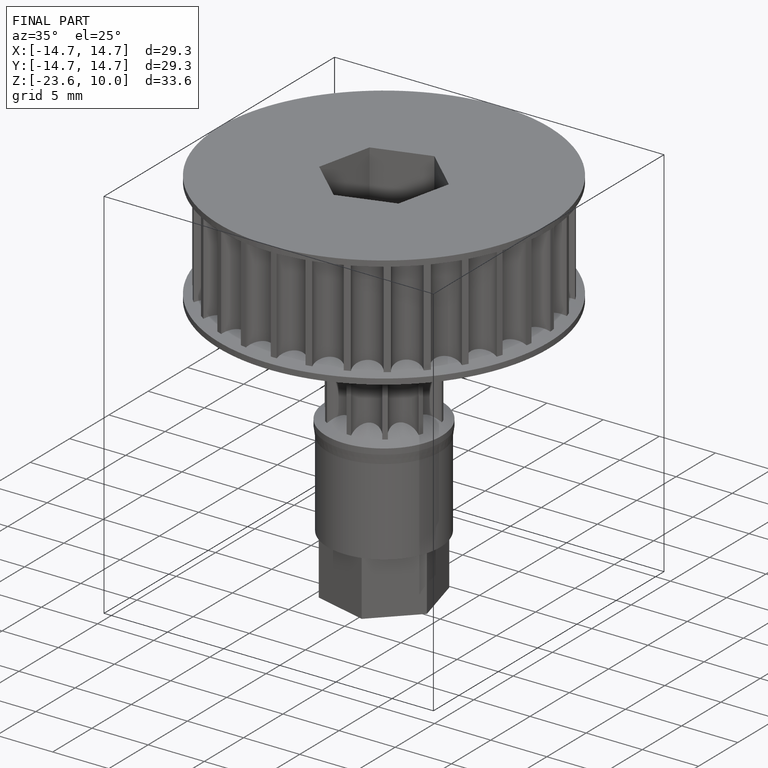
[diagram: finished part — iso view with bounding-box wireframe]
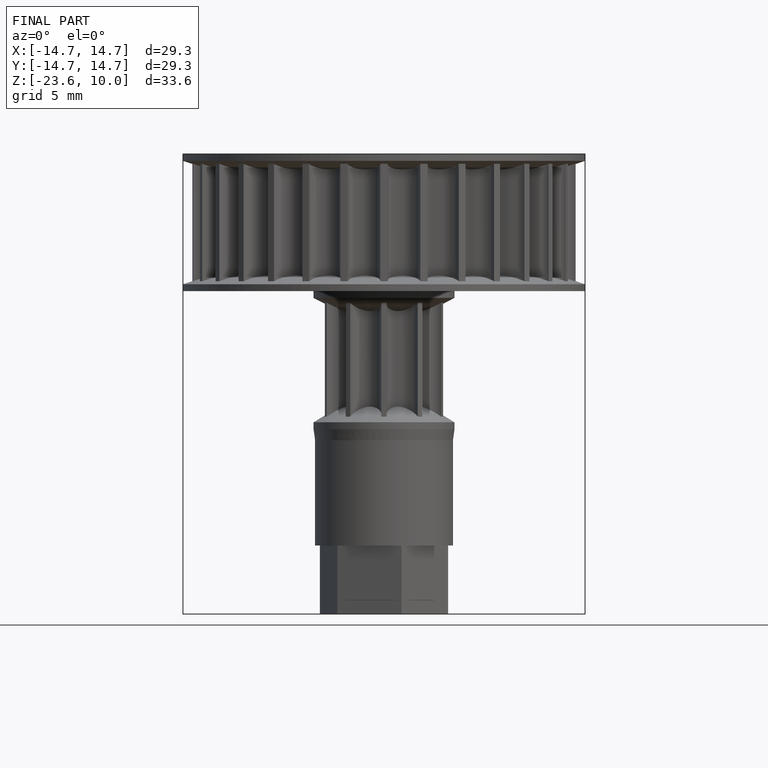
[diagram: finished part — front view with bounding-box wireframe]
